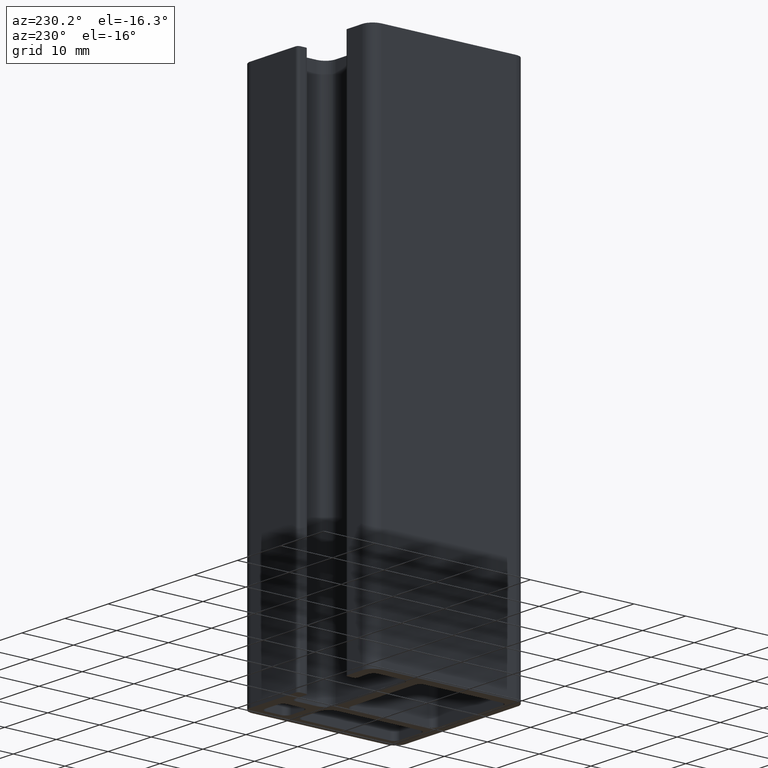
[diagram: clean part render]
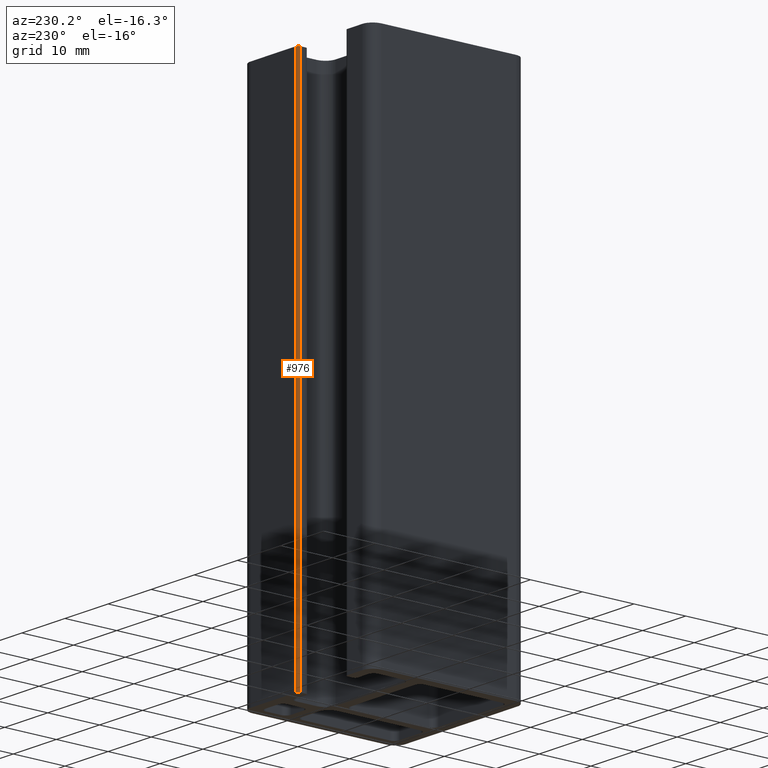
[diagram: same view with one face highlighted and labeled with its STEP entity id]
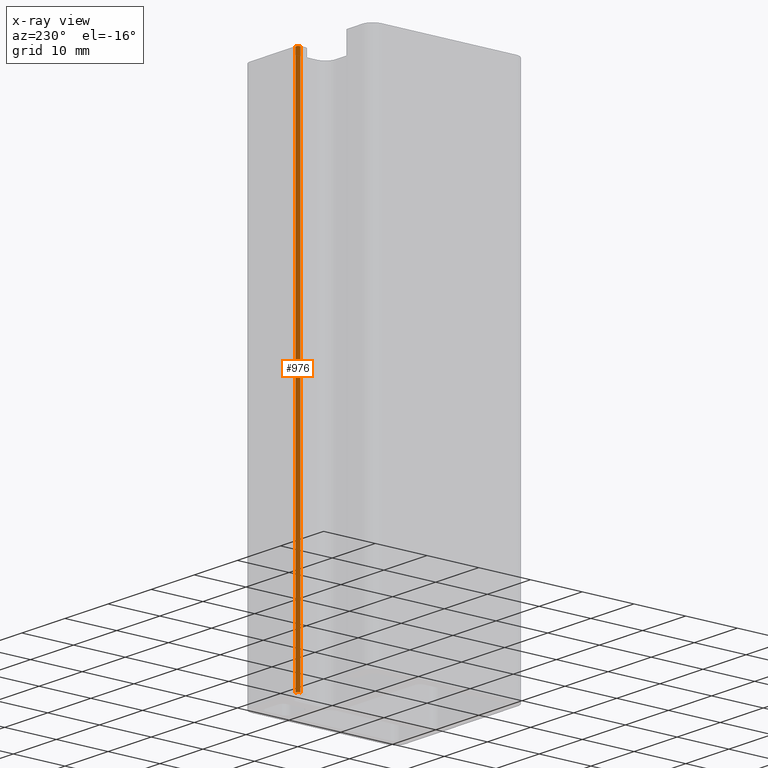
[diagram: x-ray of the same camera — body ghosted, the highlighted face saturated]
A machine part, auxiliary view. The second image highlights one B-rep face of the part: STEP entity #976.
The next image is the same camera in x-ray: the body ghosted, the highlighted face saturated — about 0% of this face is hidden behind the body in this view.
In plain terms, the highlighted cylindrical surface (edge-blend (fillet) strip) has radius 0.5 mm, axis along (0, 0, 1).
Its self-contained STEP definition (entity closure, byte-faithful):
#51=CIRCLE('',#1059,0.5);
#52=CIRCLE('',#1060,0.5);
#84=CYLINDRICAL_SURFACE('',#1058,0.5);
#124=FACE_OUTER_BOUND('',#174,.T.);
#174=EDGE_LOOP('',(#755,#756,#757,#758));
#261=LINE('',#1577,#357);
#263=LINE('',#1583,#359);
#357=VECTOR('',#1281,100.);
#359=VECTOR('',#1287,100.);
#453=VERTEX_POINT('',#1574);
#454=VERTEX_POINT('',#1576);
#455=VERTEX_POINT('',#1580);
#456=VERTEX_POINT('',#1582);
#579=EDGE_CURVE('',#454,#453,#261,.T.);
#581=EDGE_CURVE('',#455,#453,#51,.T.);
#582=EDGE_CURVE('',#455,#456,#263,.T.);
#583=EDGE_CURVE('',#454,#456,#52,.T.);
#755=ORIENTED_EDGE('',*,*,#581,.F.);
#756=ORIENTED_EDGE('',*,*,#582,.T.);
#757=ORIENTED_EDGE('',*,*,#583,.F.);
#758=ORIENTED_EDGE('',*,*,#579,.T.);
#976=ADVANCED_FACE('',(#124),#84,.T.);
#1058=AXIS2_PLACEMENT_3D('',#1579,#1283,#1284);
#1059=AXIS2_PLACEMENT_3D('',#1581,#1285,#1286);
#1060=AXIS2_PLACEMENT_3D('',#1584,#1288,#1289);
#1281=DIRECTION('',(0.,0.,1.));
#1283=DIRECTION('center_axis',(0.,0.,1.));
#1284=DIRECTION('ref_axis',(0.,-1.,0.));
#1285=DIRECTION('center_axis',(0.,0.,1.));
#1286=DIRECTION('ref_axis',(0.,-1.,0.));
#1287=DIRECTION('',(0.,0.,-1.));
#1288=DIRECTION('center_axis',(0.,0.,-1.));
#1289=DIRECTION('ref_axis',(0.,-1.,0.));
#1574=CARTESIAN_POINT('',(2.,14.5,100.));
#1576=CARTESIAN_POINT('',(2.,14.5,0.));
#1577=CARTESIAN_POINT('',(2.,14.5,0.));
#1579=CARTESIAN_POINT('Origin',(2.5,14.5,0.));
#1580=CARTESIAN_POINT('',(2.5,15.,100.));
#1581=CARTESIAN_POINT('Origin',(2.5,14.5,100.));
#1582=CARTESIAN_POINT('',(2.5,15.,0.));
#1583=CARTESIAN_POINT('',(2.50000000000759,14.9999999960879,0.));
#1584=CARTESIAN_POINT('Origin',(2.5,14.5,0.));